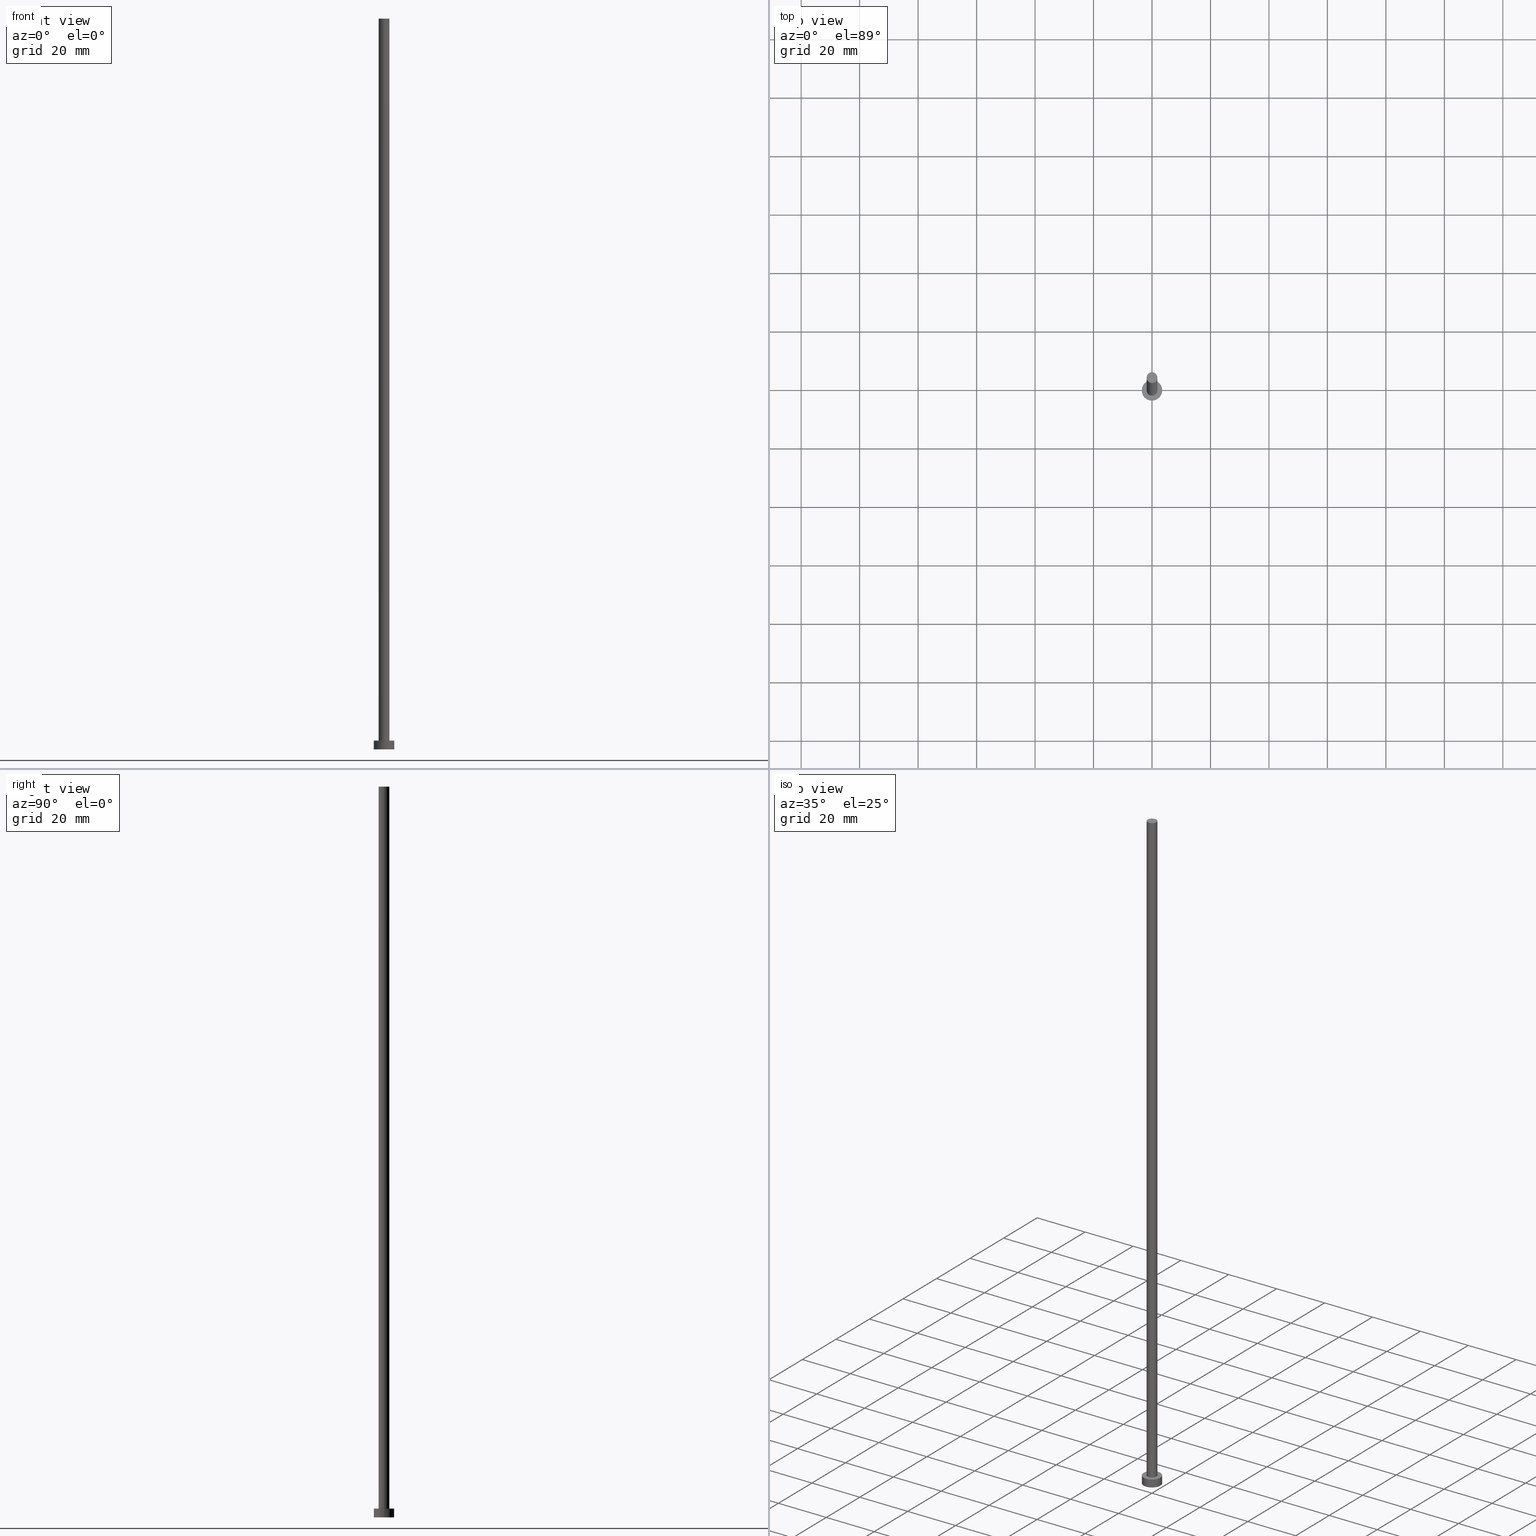
[diagram: canonical four-view strip — front | top / right | iso, engineering-drawing reading convention]
A machine part, canonical four-view strip (front | top / right | iso — engineering-drawing reading convention). The complete STEP part file that produces these views, byte-faithful:
ISO-10303-21;
HEADER;
FILE_DESCRIPTION (( 'STEP AP203' ),
    '1' );
FILE_NAME ('8f81.STEP',
    '2026-02-06T12:42:49',
    ( '' ),
    ( '' ),
    'SwSTEP 2.0',
    'SolidWorks 2019',
    '' );
FILE_SCHEMA (( 'CONFIG_CONTROL_DESIGN' ));
ENDSEC;

DATA;
#1 = DATE_TIME_ROLE ( 'creation_date' ) ;
#2 = CARTESIAN_POINT ( 'NONE',  ( 0.000000000000000000, 0.000000000000000000, 250.0000000000000000 ) ) ;
#3 = DIRECTION ( 'NONE',  ( 1.000000000000000000, 0.000000000000000000, 0.000000000000000000 ) ) ;
#4 = ORIENTED_EDGE ( 'NONE', *, *, #146, .F. ) ;
#5 = DIRECTION ( 'NONE',  ( -0.000000000000000000, -0.000000000000000000, -1.000000000000000000 ) ) ;
#6 = EDGE_LOOP ( 'NONE', ( #204, #139 ) ) ;
#7 = CIRCLE ( 'NONE', #152, 1.850000000000000089 ) ;
#8 = VERTEX_POINT ( 'NONE', #42 ) ;
#9 = AXIS2_PLACEMENT_3D ( 'NONE', #176, #215, #3 ) ;
#10 = CC_DESIGN_DATE_AND_TIME_ASSIGNMENT ( #39, #1, ( #27 ) ) ;
#11 = DATE_TIME_ROLE ( 'classification_date' ) ;
#12 = ADVANCED_FACE ( 'NONE', ( #124 ), #182, .T. ) ;
#13 = CIRCLE ( 'NONE', #117, 1.850000000000000089 ) ;
#14 = SECURITY_CLASSIFICATION ( '', '', #251 ) ;
#15 = PERSON_AND_ORGANIZATION ( #154, #113 ) ;
#16 = CALENDAR_DATE ( 2026, 6, 2 ) ;
#17 = VECTOR ( 'NONE', #87, 1000.000000000000000 ) ;
#18 = ADVANCED_FACE ( 'NONE', ( #103 ), #178, .T. ) ;
#19 = CARTESIAN_POINT ( 'NONE',  ( -1.850000000000000089, 0.000000000000000000, 250.0000000000000000 ) ) ;
#20 = DIRECTION ( 'NONE',  ( 1.000000000000000000, 0.000000000000000000, 0.000000000000000000 ) ) ;
#21 = CC_DESIGN_PERSON_AND_ORGANIZATION_ASSIGNMENT ( #209, #148, ( #52 ) ) ;
#22 = LOCAL_TIME ( 13, 42, 49.00000000000000000, #185 ) ;
#23 = PERSON_AND_ORGANIZATION ( #154, #113 ) ;
#24 = DIRECTION ( 'NONE',  ( -0.000000000000000000, -0.000000000000000000, -1.000000000000000000 ) ) ;
#25 = DIRECTION ( 'NONE',  ( -1.000000000000000000, 0.000000000000000000, 0.000000000000000000 ) ) ;
#26 = ORIENTED_EDGE ( 'NONE', *, *, #35, .F. ) ;
#27 = PRODUCT_DEFINITION ( 'NEZN�M�', '', #52, #144 ) ;
#28 = ORIENTED_EDGE ( 'NONE', *, *, #146, .T. ) ;
#29 = CARTESIAN_POINT ( 'NONE',  ( -3.500000000000000444, 0.000000000000000000, 3.000000000000000000 ) ) ;
#30 =( NAMED_UNIT ( * ) PLANE_ANGLE_UNIT ( ) SI_UNIT ( $, .RADIAN. ) );
#31 = APPROVAL_DATE_TIME ( #34, #129 ) ;
#32 = ORIENTED_EDGE ( 'NONE', *, *, #82, .T. ) ;
#33 = AXIS2_PLACEMENT_3D ( 'NONE', #59, #135, #232 ) ;
#34 = DATE_AND_TIME ( #16, #22 ) ;
#35 = EDGE_CURVE ( 'NONE', #236, #8, #13, .T. ) ;
#36 = DIRECTION ( 'NONE',  ( 0.000000000000000000, 0.000000000000000000, 1.000000000000000000 ) ) ;
#37 = COORDINATED_UNIVERSAL_TIME_OFFSET ( 1, 0, .AHEAD. ) ;
#38 = DIRECTION ( 'NONE',  ( 0.000000000000000000, 0.000000000000000000, 1.000000000000000000 ) ) ;
#39 = DATE_AND_TIME ( #95, #121 ) ;
#40 = CIRCLE ( 'NONE', #213, 3.500000000000000444 ) ;
#41 = EDGE_LOOP ( 'NONE', ( #162, #180 ) ) ;
#42 = CARTESIAN_POINT ( 'NONE',  ( 1.850000000000000089, 2.265596578422603100E-16, 250.0000000000000000 ) ) ;
#43 = CIRCLE ( 'NONE', #142, 1.850000000000000089 ) ;
#44 = DIRECTION ( 'NONE',  ( 0.000000000000000000, 0.000000000000000000, 1.000000000000000000 ) ) ;
#45 = APPROVAL ( #62, 'NEUR�EN�' ) ;
#46 = EDGE_LOOP ( 'NONE', ( #161, #104 ) ) ;
#47 = ADVANCED_FACE ( 'NONE', ( #193 ), #218, .T. ) ;
#48 = ORIENTED_EDGE ( 'NONE', *, *, #254, .F. ) ;
#49 = DIRECTION ( 'NONE',  ( 1.000000000000000000, 0.000000000000000000, 0.000000000000000000 ) ) ;
#50 = DATE_AND_TIME ( #74, #166 ) ;
#51 = COORDINATED_UNIVERSAL_TIME_OFFSET ( 1, 0, .AHEAD. ) ;
#52 = PRODUCT_DEFINITION_FORMATION_WITH_SPECIFIED_SOURCE ( 'LIBOVOLN�', '', #133, .NOT_KNOWN. ) ;
#53 = ADVANCED_FACE ( 'NONE', ( #157, #131 ), #96, .T. ) ;
#54 = CARTESIAN_POINT ( 'NONE',  ( 3.500000000000000444, 4.286263797015737088E-16, 3.000000000000000000 ) ) ;
#55 = AXIS2_PLACEMENT_3D ( 'NONE', #191, #24, #99 ) ;
#56 = DIRECTION ( 'NONE',  ( 0.000000000000000000, 0.000000000000000000, 1.000000000000000000 ) ) ;
#57 = PLANE ( 'NONE',  #247 ) ;
#58 = APPLICATION_PROTOCOL_DEFINITION ( 'international standard', 'config_control_design', 1994, #123 ) ;
#59 = CARTESIAN_POINT ( 'NONE',  ( 0.000000000000000000, 0.000000000000000000, 250.0000000000000000 ) ) ;
#60 = APPROVAL_STATUS ( 'not_yet_approved' ) ;
#61 = AXIS2_PLACEMENT_3D ( 'NONE', #120, #141, #25 ) ;
#62 = APPROVAL_STATUS ( 'not_yet_approved' ) ;
#63 = ORIENTED_EDGE ( 'NONE', *, *, #225, .F. ) ;
#64 = EDGE_CURVE ( 'NONE', #8, #236, #7, .T. ) ;
#65 = ORIENTED_EDGE ( 'NONE', *, *, #188, .F. ) ;
#66 = APPROVAL ( #60, 'NEUR�EN�' ) ;
#67 =( GEOMETRIC_REPRESENTATION_CONTEXT ( 3 ) GLOBAL_UNCERTAINTY_ASSIGNED_CONTEXT ( ( #229 ) ) GLOBAL_UNIT_ASSIGNED_CONTEXT ( ( #108, #30, #100 ) ) REPRESENTATION_CONTEXT ( 'NONE', 'WORKASPACE' ) );
#68 = EDGE_LOOP ( 'NONE', ( #224, #28, #122, #140 ) ) ;
#69 = CARTESIAN_POINT ( 'NONE',  ( -1.850000000000000089, 0.000000000000000000, 3.000000000000000000 ) ) ;
#70 = ORIENTED_EDGE ( 'NONE', *, *, #126, .T. ) ;
#71 = DIRECTION ( 'NONE',  ( 1.000000000000000000, 0.000000000000000000, 0.000000000000000000 ) ) ;
#72 = AXIS2_PLACEMENT_3D ( 'NONE', #214, #56, #175 ) ;
#73 = CALENDAR_DATE ( 2026, 6, 2 ) ;
#74 = CALENDAR_DATE ( 2026, 6, 2 ) ;
#75 = APPROVAL_DATE_TIME ( #50, #66 ) ;
#76 = CIRCLE ( 'NONE', #137, 3.500000000000000444 ) ;
#77 = DIRECTION ( 'NONE',  ( 1.000000000000000000, 0.000000000000000000, 0.000000000000000000 ) ) ;
#78 = VECTOR ( 'NONE', #243, 1000.000000000000000 ) ;
#79 = APPROVAL_PERSON_ORGANIZATION ( #158, #66, #105 ) ;
#80 = CYLINDRICAL_SURFACE ( 'NONE', #33, 1.850000000000000089 ) ;
#81 = PLANE ( 'NONE',  #102 ) ;
#82 = EDGE_CURVE ( 'NONE', #106, #86, #40, .T. ) ;
#83 = EDGE_LOOP ( 'NONE', ( #65, #198, #220, #63 ) ) ;
#84 = DIRECTION ( 'NONE',  ( -1.000000000000000000, 0.000000000000000000, 0.000000000000000000 ) ) ;
#85 = VERTEX_POINT ( 'NONE', #54 ) ;
#86 = VERTEX_POINT ( 'NONE', #159 ) ;
#87 = DIRECTION ( 'NONE',  ( -0.000000000000000000, -0.000000000000000000, -1.000000000000000000 ) ) ;
#88 = CIRCLE ( 'NONE', #160, 3.500000000000000444 ) ;
#89 = LOCAL_TIME ( 13, 42, 49.00000000000000000, #51 ) ;
#90 = DIRECTION ( 'NONE',  ( 0.000000000000000000, 0.000000000000000000, 1.000000000000000000 ) ) ;
#91 = SHAPE_DEFINITION_REPRESENTATION ( #217, #242 ) ;
#92 = CLOSED_SHELL ( 'NONE', ( #12, #47, #18, #53, #134, #132, #109 ) ) ;
#93 = CARTESIAN_POINT ( 'NONE',  ( 0.000000000000000000, 0.000000000000000000, 0.000000000000000000 ) ) ;
#94 = CARTESIAN_POINT ( 'NONE',  ( 0.000000000000000000, 0.000000000000000000, 250.0000000000000000 ) ) ;
#95 = CALENDAR_DATE ( 2026, 6, 2 ) ;
#96 = PLANE ( 'NONE',  #72 ) ;
#97 = CC_DESIGN_PERSON_AND_ORGANIZATION_ASSIGNMENT ( #138, #172, ( #27 ) ) ;
#98 = DATE_AND_TIME ( #192, #202 ) ;
#99 = DIRECTION ( 'NONE',  ( -1.000000000000000000, 0.000000000000000000, 0.000000000000000000 ) ) ;
#100 =( NAMED_UNIT ( * ) SI_UNIT ( $, .STERADIAN. ) SOLID_ANGLE_UNIT ( ) );
#101 = ORIENTED_EDGE ( 'NONE', *, *, #211, .T. ) ;
#102 = AXIS2_PLACEMENT_3D ( 'NONE', #94, #253, #155 ) ;
#103 = FACE_OUTER_BOUND ( 'NONE', #143, .T. ) ;
#104 = ORIENTED_EDGE ( 'NONE', *, *, #188, .T. ) ;
#105 = APPROVAL_ROLE ( '' ) ;
#106 = VERTEX_POINT ( 'NONE', #114 ) ;
#107 = DIRECTION ( 'NONE',  ( 1.000000000000000000, 0.000000000000000000, 0.000000000000000000 ) ) ;
#108 =( LENGTH_UNIT ( ) NAMED_UNIT ( * ) SI_UNIT ( .MILLI., .METRE. ) );
#109 = ADVANCED_FACE ( 'NONE', ( #190 ), #81, .T. ) ;
#110 = DIRECTION ( 'NONE',  ( 0.000000000000000000, 0.000000000000000000, 1.000000000000000000 ) ) ;
#111 = CC_DESIGN_PERSON_AND_ORGANIZATION_ASSIGNMENT ( #245, #241, ( #14 ) ) ;
#112 = CARTESIAN_POINT ( 'NONE',  ( 3.500000000000000444, 4.286263797015737088E-16, 3.000000000000000000 ) ) ;
#113 = ORGANIZATION ( 'NEUR�EN�', 'NEUR�EN�', '' ) ;
#114 = CARTESIAN_POINT ( 'NONE',  ( -3.500000000000000444, 0.000000000000000000, 0.000000000000000000 ) ) ;
#115 = APPROVAL_DATE_TIME ( #98, #45 ) ;
#116 = PERSON_AND_ORGANIZATION ( #154, #113 ) ;
#117 = AXIS2_PLACEMENT_3D ( 'NONE', #222, #44, #77 ) ;
#118 = APPROVAL_PERSON_ORGANIZATION ( #15, #129, #227 ) ;
#119 = ORIENTED_EDGE ( 'NONE', *, *, #225, .T. ) ;
#120 = CARTESIAN_POINT ( 'NONE',  ( 0.000000000000000000, 0.000000000000000000, 250.0000000000000000 ) ) ;
#121 = LOCAL_TIME ( 13, 42, 49.00000000000000000, #156 ) ;
#122 = ORIENTED_EDGE ( 'NONE', *, *, #244, .T. ) ;
#123 = APPLICATION_CONTEXT ( 'configuration controlled 3d designs of mechanical parts and assemblies' ) ;
#124 = FACE_OUTER_BOUND ( 'NONE', #68, .T. ) ;
#125 = DIRECTION ( 'NONE',  ( 1.000000000000000000, 0.000000000000000000, 0.000000000000000000 ) ) ;
#126 = EDGE_CURVE ( 'NONE', #236, #221, #174, .T. ) ;
#127 = AXIS2_PLACEMENT_3D ( 'NONE', #208, #90, #168 ) ;
#128 = EDGE_LOOP ( 'NONE', ( #4, #26, #70, #101 ) ) ;
#129 = APPROVAL ( #147, 'NEUR�EN�' ) ;
#130 = DATE_AND_TIME ( #73, #89 ) ;
#131 = FACE_OUTER_BOUND ( 'NONE', #46, .T. ) ;
#132 = ADVANCED_FACE ( 'NONE', ( #171 ), #80, .T. ) ;
#133 = PRODUCT ( '8f81', '8f81', '', ( #196 ) ) ;
#134 = ADVANCED_FACE ( 'NONE', ( #231 ), #57, .F. ) ;
#135 = DIRECTION ( 'NONE',  ( -0.000000000000000000, -0.000000000000000000, -1.000000000000000000 ) ) ;
#136 = DIRECTION ( 'NONE',  ( 0.000000000000000000, 0.000000000000000000, 1.000000000000000000 ) ) ;
#137 = AXIS2_PLACEMENT_3D ( 'NONE', #246, #110, #49 ) ;
#138 = PERSON_AND_ORGANIZATION ( #154, #113 ) ;
#139 = ORIENTED_EDGE ( 'NONE', *, *, #64, .T. ) ;
#140 = ORIENTED_EDGE ( 'NONE', *, *, #126, .F. ) ;
#141 = DIRECTION ( 'NONE',  ( -0.000000000000000000, -0.000000000000000000, -1.000000000000000000 ) ) ;
#142 = AXIS2_PLACEMENT_3D ( 'NONE', #186, #164, #107 ) ;
#143 = EDGE_LOOP ( 'NONE', ( #177, #48, #119, #32 ) ) ;
#144 = DESIGN_CONTEXT ( 'detailed design', #123, 'design' ) ;
#145 = CARTESIAN_POINT ( 'NONE',  ( -3.500000000000000444, 0.000000000000000000, 3.000000000000000000 ) ) ;
#146 = EDGE_CURVE ( 'NONE', #8, #203, #223, .T. ) ;
#147 = APPROVAL_STATUS ( 'not_yet_approved' ) ;
#148 = PERSON_AND_ORGANIZATION_ROLE ( 'creator' ) ;
#149 = CARTESIAN_POINT ( 'NONE',  ( 1.850000000000000089, 2.265596578422603100E-16, 3.000000000000000000 ) ) ;
#150 = DIRECTION ( 'NONE',  ( -0.000000000000000000, -0.000000000000000000, -1.000000000000000000 ) ) ;
#151 = DIRECTION ( 'NONE',  ( 0.000000000000000000, 0.000000000000000000, 1.000000000000000000 ) ) ;
#152 = AXIS2_PLACEMENT_3D ( 'NONE', #2, #38, #20 ) ;
#153 = APPLICATION_CONTEXT ( 'configuration controlled 3d designs of mechanical parts and assemblies' ) ;
#154 = PERSON ( 'NEUR�EN�', 'NEUR�EN�', 'NEUR�EN�', ('NEUR�EN�'), ('NEUR�EN�'), ('NEUR�EN�') ) ;
#155 = DIRECTION ( 'NONE',  ( 1.000000000000000000, 0.000000000000000000, -0.000000000000000000 ) ) ;
#156 = COORDINATED_UNIVERSAL_TIME_OFFSET ( 1, 0, .AHEAD. ) ;
#157 = FACE_BOUND ( 'NONE', #163, .T. ) ;
#158 = PERSON_AND_ORGANIZATION ( #154, #113 ) ;
#159 = CARTESIAN_POINT ( 'NONE',  ( 3.500000000000000444, 4.286263797015737088E-16, 0.000000000000000000 ) ) ;
#160 = AXIS2_PLACEMENT_3D ( 'NONE', #226, #184, #71 ) ;
#161 = ORIENTED_EDGE ( 'NONE', *, *, #254, .T. ) ;
#162 = ORIENTED_EDGE ( 'NONE', *, *, #82, .F. ) ;
#163 = EDGE_LOOP ( 'NONE', ( #207, #201 ) ) ;
#164 = DIRECTION ( 'NONE',  ( 0.000000000000000000, 0.000000000000000000, 1.000000000000000000 ) ) ;
#165 = VECTOR ( 'NONE', #150, 1000.000000000000000 ) ;
#166 = LOCAL_TIME ( 13, 42, 49.00000000000000000, #181 ) ;
#167 = CARTESIAN_POINT ( 'NONE',  ( 0.000000000000000000, 0.000000000000000000, 3.000000000000000000 ) ) ;
#168 = DIRECTION ( 'NONE',  ( 1.000000000000000000, 0.000000000000000000, 0.000000000000000000 ) ) ;
#169 = PERSON_AND_ORGANIZATION_ROLE ( 'design_supplier' ) ;
#170 = AXIS2_PLACEMENT_3D ( 'NONE', #167, #151, #125 ) ;
#171 = FACE_OUTER_BOUND ( 'NONE', #128, .T. ) ;
#172 = PERSON_AND_ORGANIZATION_ROLE ( 'creator' ) ;
#173 = CC_DESIGN_APPROVAL ( #45, ( #27 ) ) ;
#174 = LINE ( 'NONE', #19, #200 ) ;
#175 = DIRECTION ( 'NONE',  ( 1.000000000000000000, 0.000000000000000000, -0.000000000000000000 ) ) ;
#176 = CARTESIAN_POINT ( 'NONE',  ( 0.000000000000000000, 0.000000000000000000, 0.000000000000000000 ) ) ;
#177 = ORIENTED_EDGE ( 'NONE', *, *, #197, .F. ) ;
#178 = CYLINDRICAL_SURFACE ( 'NONE', #210, 3.500000000000000444 ) ;
#179 = CC_DESIGN_PERSON_AND_ORGANIZATION_ASSIGNMENT ( #228, #169, ( #52 ) ) ;
#180 = ORIENTED_EDGE ( 'NONE', *, *, #212, .F. ) ;
#181 = COORDINATED_UNIVERSAL_TIME_OFFSET ( 1, 0, .AHEAD. ) ;
#182 = CYLINDRICAL_SURFACE ( 'NONE', #61, 1.850000000000000089 ) ;
#183 = CC_DESIGN_APPROVAL ( #129, ( #14 ) ) ;
#184 = DIRECTION ( 'NONE',  ( 0.000000000000000000, 0.000000000000000000, 1.000000000000000000 ) ) ;
#185 = COORDINATED_UNIVERSAL_TIME_OFFSET ( 1, 0, .AHEAD. ) ;
#186 = CARTESIAN_POINT ( 'NONE',  ( 0.000000000000000000, 0.000000000000000000, 3.000000000000000000 ) ) ;
#187 = LINE ( 'NONE', #145, #78 ) ;
#188 = EDGE_CURVE ( 'NONE', #85, #240, #76, .T. ) ;
#189 = CIRCLE ( 'NONE', #127, 3.500000000000000444 ) ;
#190 = FACE_OUTER_BOUND ( 'NONE', #6, .T. ) ;
#191 = CARTESIAN_POINT ( 'NONE',  ( 0.000000000000000000, 0.000000000000000000, 3.000000000000000000 ) ) ;
#192 = CALENDAR_DATE ( 2026, 6, 2 ) ;
#193 = FACE_OUTER_BOUND ( 'NONE', #83, .T. ) ;
#194 = CC_DESIGN_APPROVAL ( #66, ( #52 ) ) ;
#195 = PERSON_AND_ORGANIZATION_ROLE ( 'design_owner' ) ;
#196 = MECHANICAL_CONTEXT ( 'NONE', #153, 'mechanical' ) ;
#197 = EDGE_CURVE ( 'NONE', #85, #86, #239, .T. ) ;
#198 = ORIENTED_EDGE ( 'NONE', *, *, #197, .T. ) ;
#199 = PRODUCT_RELATED_PRODUCT_CATEGORY ( 'detail', '', ( #133 ) ) ;
#200 = VECTOR ( 'NONE', #252, 1000.000000000000000 ) ;
#201 = ORIENTED_EDGE ( 'NONE', *, *, #244, .F. ) ;
#202 = LOCAL_TIME ( 13, 42, 49.00000000000000000, #37 ) ;
#203 = VERTEX_POINT ( 'NONE', #149 ) ;
#204 = ORIENTED_EDGE ( 'NONE', *, *, #35, .T. ) ;
#205 = CC_DESIGN_DATE_AND_TIME_ASSIGNMENT ( #130, #11, ( #14 ) ) ;
#206 = CARTESIAN_POINT ( 'NONE',  ( -1.850000000000000089, 0.000000000000000000, 250.0000000000000000 ) ) ;
#207 = ORIENTED_EDGE ( 'NONE', *, *, #211, .F. ) ;
#208 = CARTESIAN_POINT ( 'NONE',  ( 0.000000000000000000, 0.000000000000000000, 0.000000000000000000 ) ) ;
#209 = PERSON_AND_ORGANIZATION ( #154, #113 ) ;
#210 = AXIS2_PLACEMENT_3D ( 'NONE', #237, #5, #84 ) ;
#211 = EDGE_CURVE ( 'NONE', #221, #203, #235, .T. ) ;
#212 = EDGE_CURVE ( 'NONE', #86, #106, #189, .T. ) ;
#213 = AXIS2_PLACEMENT_3D ( 'NONE', #93, #36, #234 ) ;
#214 = CARTESIAN_POINT ( 'NONE',  ( 0.000000000000000000, 0.000000000000000000, 3.000000000000000000 ) ) ;
#215 = DIRECTION ( 'NONE',  ( 0.000000000000000000, 0.000000000000000000, 1.000000000000000000 ) ) ;
#216 = DIRECTION ( 'NONE',  ( 1.000000000000000000, 0.000000000000000000, -0.000000000000000000 ) ) ;
#217 = PRODUCT_DEFINITION_SHAPE ( 'NONE', 'NONE',  #27 ) ;
#218 = CYLINDRICAL_SURFACE ( 'NONE', #55, 3.500000000000000444 ) ;
#219 = CC_DESIGN_PERSON_AND_ORGANIZATION_ASSIGNMENT ( #23, #195, ( #133 ) ) ;
#220 = ORIENTED_EDGE ( 'NONE', *, *, #212, .T. ) ;
#221 = VERTEX_POINT ( 'NONE', #69 ) ;
#222 = CARTESIAN_POINT ( 'NONE',  ( 0.000000000000000000, 0.000000000000000000, 250.0000000000000000 ) ) ;
#223 = LINE ( 'NONE', #249, #17 ) ;
#224 = ORIENTED_EDGE ( 'NONE', *, *, #64, .F. ) ;
#225 = EDGE_CURVE ( 'NONE', #240, #106, #187, .T. ) ;
#226 = CARTESIAN_POINT ( 'NONE',  ( 0.000000000000000000, 0.000000000000000000, 3.000000000000000000 ) ) ;
#227 = APPROVAL_ROLE ( '' ) ;
#228 = PERSON_AND_ORGANIZATION ( #154, #113 ) ;
#229 = UNCERTAINTY_MEASURE_WITH_UNIT (LENGTH_MEASURE( 1.000000000000000082E-05 ), #108, 'distance_accuracy_value', 'NONE');
#230 = APPLICATION_PROTOCOL_DEFINITION ( 'international standard', 'config_control_design', 1994, #153 ) ;
#231 = FACE_OUTER_BOUND ( 'NONE', #41, .T. ) ;
#232 = DIRECTION ( 'NONE',  ( -1.000000000000000000, 0.000000000000000000, 0.000000000000000000 ) ) ;
#233 = APPROVAL_ROLE ( '' ) ;
#234 = DIRECTION ( 'NONE',  ( 1.000000000000000000, 0.000000000000000000, 0.000000000000000000 ) ) ;
#235 = CIRCLE ( 'NONE', #170, 1.850000000000000089 ) ;
#236 = VERTEX_POINT ( 'NONE', #206 ) ;
#237 = CARTESIAN_POINT ( 'NONE',  ( 0.000000000000000000, 0.000000000000000000, 3.000000000000000000 ) ) ;
#238 = APPROVAL_PERSON_ORGANIZATION ( #116, #45, #233 ) ;
#239 = LINE ( 'NONE', #112, #165 ) ;
#240 = VERTEX_POINT ( 'NONE', #29 ) ;
#241 = PERSON_AND_ORGANIZATION_ROLE ( 'classification_officer' ) ;
#242 = ADVANCED_BREP_SHAPE_REPRESENTATION ( '8f81', ( #250, #9 ), #67 ) ;
#243 = DIRECTION ( 'NONE',  ( -0.000000000000000000, -0.000000000000000000, -1.000000000000000000 ) ) ;
#244 = EDGE_CURVE ( 'NONE', #203, #221, #43, .T. ) ;
#245 = PERSON_AND_ORGANIZATION ( #154, #113 ) ;
#246 = CARTESIAN_POINT ( 'NONE',  ( 0.000000000000000000, 0.000000000000000000, 3.000000000000000000 ) ) ;
#247 = AXIS2_PLACEMENT_3D ( 'NONE', #255, #136, #216 ) ;
#248 = CC_DESIGN_SECURITY_CLASSIFICATION ( #14, ( #52 ) ) ;
#249 = CARTESIAN_POINT ( 'NONE',  ( 1.850000000000000089, 2.265596578422603100E-16, 250.0000000000000000 ) ) ;
#250 = MANIFOLD_SOLID_BREP ( 'P�idat vysunut�m3', #92 ) ;
#251 = SECURITY_CLASSIFICATION_LEVEL ( 'unclassified' ) ;
#252 = DIRECTION ( 'NONE',  ( -0.000000000000000000, -0.000000000000000000, -1.000000000000000000 ) ) ;
#253 = DIRECTION ( 'NONE',  ( 0.000000000000000000, 0.000000000000000000, 1.000000000000000000 ) ) ;
#254 = EDGE_CURVE ( 'NONE', #240, #85, #88, .T. ) ;
#255 = CARTESIAN_POINT ( 'NONE',  ( 0.000000000000000000, 0.000000000000000000, 0.000000000000000000 ) ) ;
ENDSEC;
END-ISO-10303-21;
